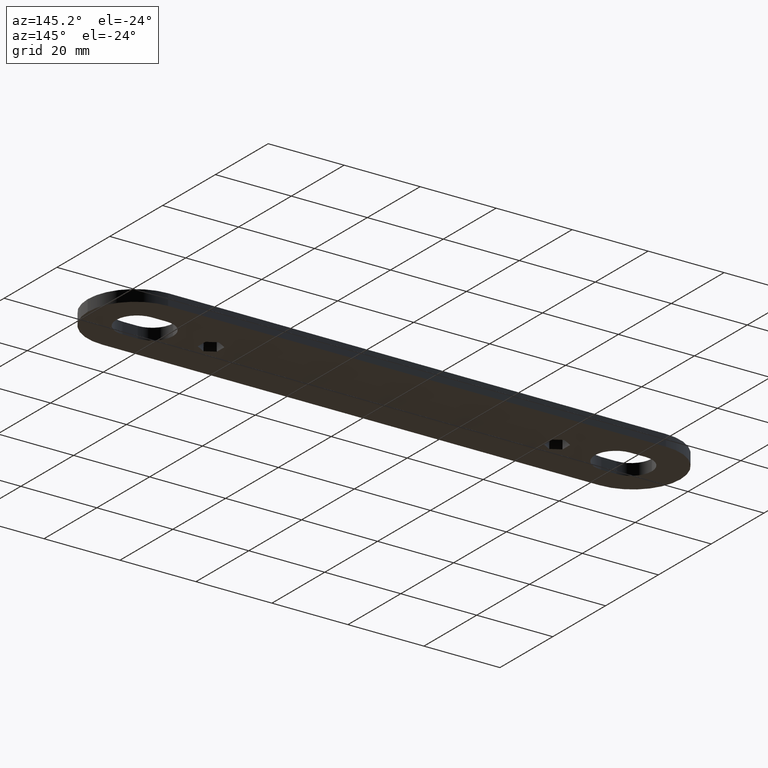
[diagram: clean part render]
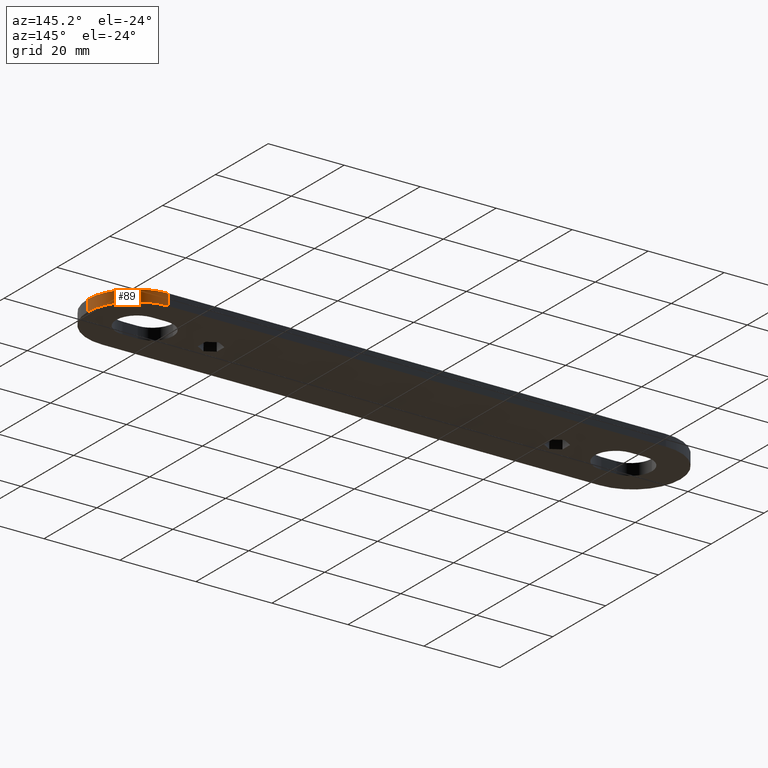
[diagram: same view with one face highlighted and labeled with its STEP entity id]
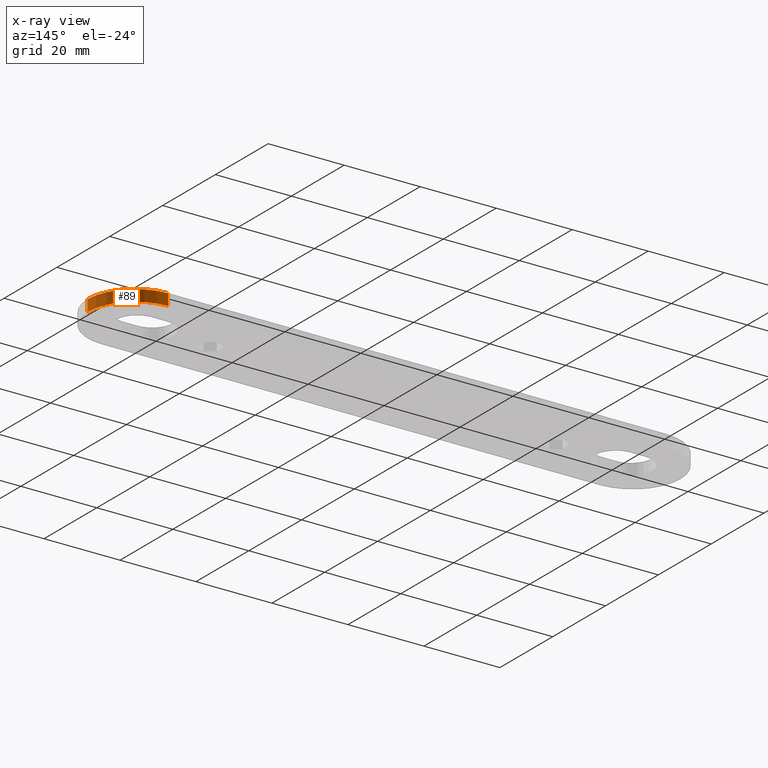
[diagram: x-ray of the same camera — body ghosted, the highlighted face saturated]
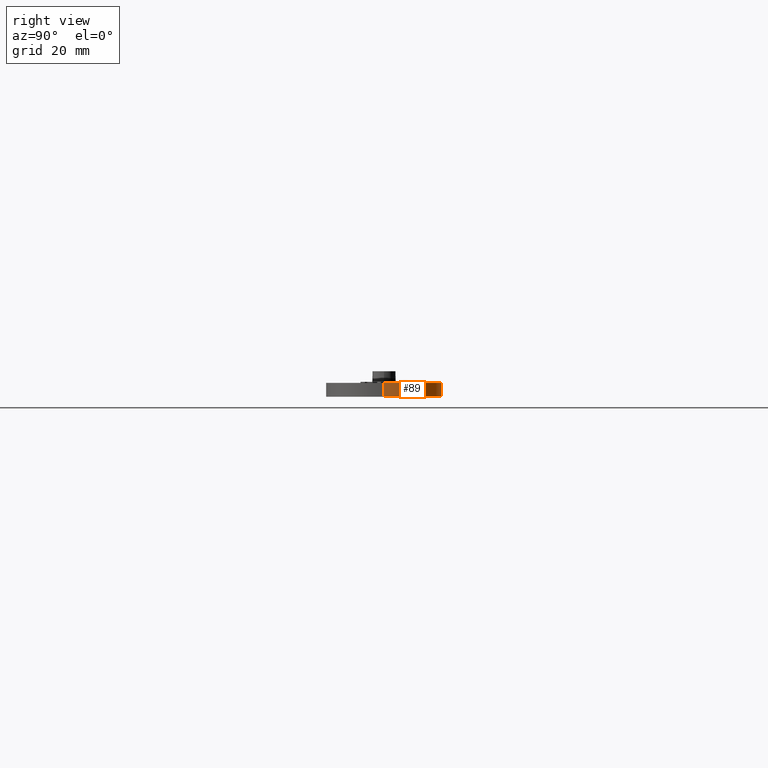
[diagram: same view with one face highlighted and labeled with its STEP entity id]
A machine part, auxiliary view. The second image highlights one B-rep face of the part: STEP entity #89.
The next image is the same camera in x-ray: the body ghosted, the highlighted face saturated — about 0% of this face is hidden behind the body in this view.
A second angle (right view) of the same face is appended — the face is thin or edge-on in the first view.
In plain terms, the highlighted cylindrical surface (partial cylindrical patch) has radius 12.5 mm, axis along (0, -0, -1).
Its self-contained STEP definition (entity closure, byte-faithful):
#89 = ADVANCED_FACE( '', ( #188 ), #189, .T. );
#188 = FACE_OUTER_BOUND( '', #345, .T. );
#189 = CYLINDRICAL_SURFACE( '', #346, 12.5000000000000 );
#345 = EDGE_LOOP( '', ( #633, #634, #635, #636 ) );
#346 = AXIS2_PLACEMENT_3D( '', #637, #638, #639 );
#633 = ORIENTED_EDGE( '', *, *, #1053, .T. );
#634 = ORIENTED_EDGE( '', *, *, #1130, .F. );
#635 = ORIENTED_EDGE( '', *, *, #1112, .F. );
#636 = ORIENTED_EDGE( '', *, *, #1078, .T. );
#637 = CARTESIAN_POINT( '', ( 65.5000000000000, 8.67361737988403E-015, -4.16333634234434E-014 ) );
#638 = DIRECTION( '', ( 1.43492962746862E-046, -6.12303176911189E-017, -1.00000000000000 ) );
#639 = DIRECTION( '', ( -5.39030083589187E-015, -1.00000000000000, 6.12303176911189E-017 ) );
#1053 = EDGE_CURVE( '', #1245, #1253, #1255, .T. );
#1078 = EDGE_CURVE( '', #1304, #1245, #1305, .T. );
#1112 = EDGE_CURVE( '', #1304, #1367, #1368, .T. );
#1130 = EDGE_CURVE( '', #1367, #1253, #1394, .T. );
#1245 = VERTEX_POINT( '', #1556 );
#1253 = VERTEX_POINT( '', #1566 );
#1255 = CIRCLE( '', #1568, 12.5000000000000 );
#1304 = VERTEX_POINT( '', #1634 );
#1305 = LINE( '', #1635, #1636 );
#1367 = VERTEX_POINT( '', #1723 );
#1368 = CIRCLE( '', #1724, 12.5000000000000 );
#1394 = LINE( '', #1762, #1763 );
#1556 = CARTESIAN_POINT( '', ( 65.5000000000001, 12.5000000000000, 2.99999999999996 ) );
#1566 = CARTESIAN_POINT( '', ( 78.0000000000000, 5.38786138100378E-015, 2.99999999999996 ) );
#1568 = AXIS2_PLACEMENT_3D( '', #1989, #1990, #1991 );
#1634 = CARTESIAN_POINT( '', ( 65.5000000000001, 12.5000000000000, -4.23987423945824E-014 ) );
#1635 = CARTESIAN_POINT( '', ( 65.5000000000001, 12.5000000000000, -4.23987423945824E-014 ) );
#1636 = VECTOR( '', #2030, 1000.00000000000 );
#1723 = CARTESIAN_POINT( '', ( 78.0000000000000, 5.20417042793042E-015, -4.16333634234434E-014 ) );
#1724 = AXIS2_PLACEMENT_3D( '', #2080, #2081, #2082 );
#1762 = CARTESIAN_POINT( '', ( 78.0000000000000, 5.20417042793042E-015, -4.16333634234434E-014 ) );
#1763 = VECTOR( '', #2110, 1000.00000000000 );
#1989 = CARTESIAN_POINT( '', ( 65.5000000000000, 8.85730833295739E-015, 2.99999999999996 ) );
#1990 = DIRECTION( '', ( 0.000000000000000, -6.12303176911189E-017, -1.00000000000000 ) );
#1991 = DIRECTION( '', ( -1.60814287233918E-016, 1.00000000000000, -6.12303176911189E-017 ) );
#2030 = DIRECTION( '', ( 0.000000000000000, 6.12303176911189E-017, 1.00000000000000 ) );
#2080 = CARTESIAN_POINT( '', ( 65.5000000000000, 8.67361737988403E-015, -4.16333634234434E-014 ) );
#2081 = DIRECTION( '', ( 0.000000000000000, -6.12303176911189E-017, -1.00000000000000 ) );
#2082 = DIRECTION( '', ( -1.60814287233918E-016, 1.00000000000000, -6.12303176911189E-017 ) );
#2110 = DIRECTION( '', ( 0.000000000000000, 6.12303176911189E-017, 1.00000000000000 ) );